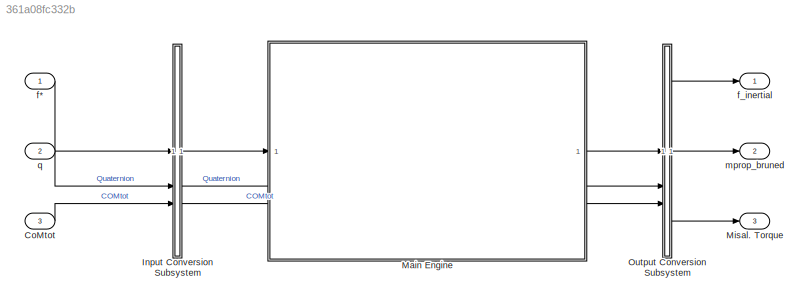
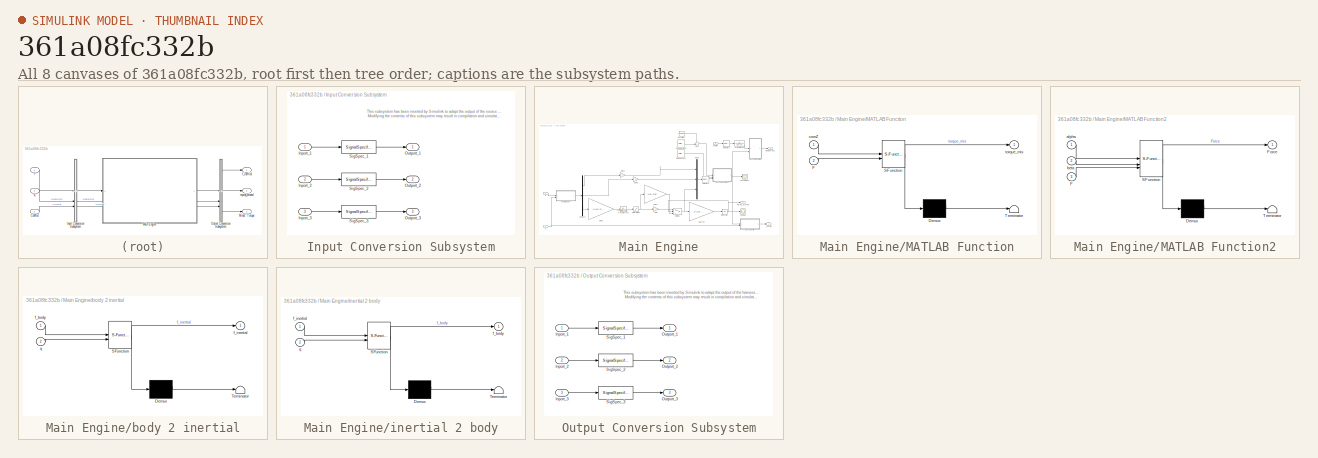
[diagram: thumbnail index - all 8 canvases of the model, root first then tree order]
MODEL slx_361a08fc332b
KIND model
CONFIG AbsTol = auto
CONFIG EnableMultiTasking = off
CONFIG FixedStep = 0.01
CONFIG MaxStep = auto
CONFIG MinStep = auto
CONFIG RelTol = 1e-3
CONFIG SampleTimeConstraint = Unconstrained
CONFIG SolverName = ode4
CONFIG StartTime = 0.0
CONFIG StopTime = 600
BLOCK [Inport] CoMtot
  Interpolate = off
  OutDataTypeStr = double
  Port = 3
  PortDimensions = [3]
  SignalType = real
  VarSizeSig = No
BLOCK [SubSystem] Input Conversion Subsystem
  AttributesFormatString = %<Description>
  Description = Signal spec.\nand routing
  Permissions = ReadOnly
  PermitHierarchicalResolution = ExplicitOnly
  Tag = __SLT_ICS__
  TreatAsGroupedWhenPropagatingVariantConditions = off
  UserDataPersistent = on
BLOCK [Inport] Input Conversion Subsystem/Inport_1
BLOCK [Inport] Input Conversion Subsystem/Inport_2
  Port = 2
BLOCK [Inport] Input Conversion Subsystem/Inport_3
  Port = 3
BLOCK [Outport] Input Conversion Subsystem/Outport_1
BLOCK [Outport] Input Conversion Subsystem/Outport_2
  Port = 2
BLOCK [Outport] Input Conversion Subsystem/Outport_3
  Port = 3
BLOCK [SignalSpecification] Input Conversion Subsystem/SigSpec_1
  Dimensions = [3, 1]
  OutDataTypeStr = double
  SignalType = real
  VarSizeSig = No
BLOCK [SignalSpecification] Input Conversion Subsystem/SigSpec_2
  Dimensions = [4, 1]
  OutDataTypeStr = double
  SignalType = real
  VarSizeSig = No
BLOCK [SignalSpecification] Input Conversion Subsystem/SigSpec_3
  Dimensions = [3]
  OutDataTypeStr = double
  SignalType = real
  VarSizeSig = No
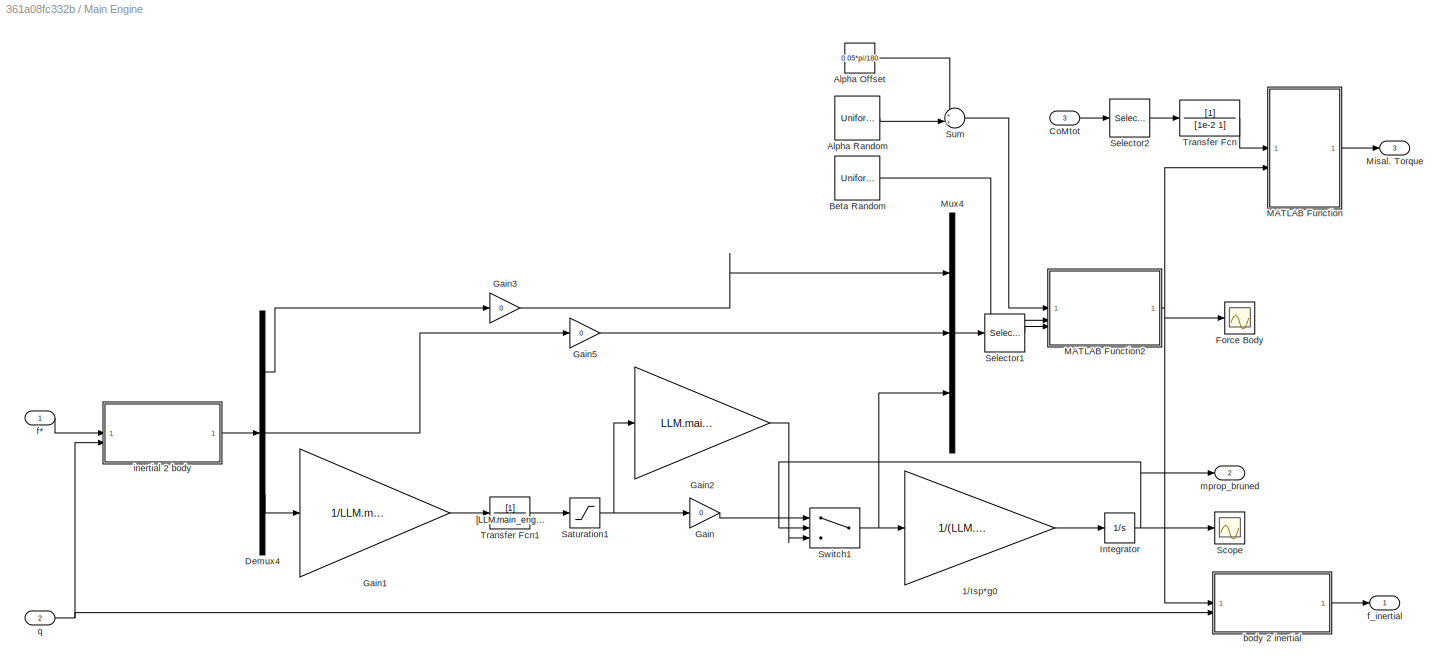
BLOCK [SubSystem] Main Engine
  NameLocation = top
  PortSchema = {"entries":[{"content":{"sides":[{"content":{"connectorIds":["In1"]},"type":"ConnectorPlacement.EquallySpacedRectSide","uuid":"1cd70ed7-fffe-4052-be12-d08ec438809a"},{"content":{"connectorIds":["Out1","Out2","Out3"],"side":"RIGHT"},"type":"ConnectorPlacement.EquallySpacedRectSide","uuid":"572c642b-d704-4725-a3d6-bfccbd3ff261"},{"content":{"side":"TOP"},"type":"ConnectorPlacement.EquallySpacedRectS...<+391ch>
  TreatAsAtomicUnit = on
BLOCK [Gain] Main Engine/1//Isp*g0
  Gain = 1/(LLM.propellant.isp*g0)
BLOCK [Constant] Main Engine/Alpha Offset
  Value = 0.05*pi/180
BLOCK [UniformRandomNumber] Main Engine/Alpha Random
  Maximum = LLM.main_engine.misallignment_alpha*pi/180
  Minimum = -LLM.main_engine.misallignment_alpha*pi/180
  SampleTime = 0.1
BLOCK [UniformRandomNumber] Main Engine/Beta Random
  Maximum = LLM.main_engine.misallignment_beta*pi/180
  Minimum = -LLM.main_engine.misallignment_beta*pi/180
  SampleTime = 0.1
  Seed = 1
BLOCK [Inport] Main Engine/CoMtot
  Port = 3
BLOCK [Demux] Main Engine/Demux4
  Outputs = 3
BLOCK [Scope] Main Engine/Force Body
  Floating = off
  NumInputPorts = 1
  ScopeSpecificationString = Simulink.scopes.TimeScopeBlockCfg('CurrentConfiguration', extmgr.ConfigurationSet(extmgr.Configuration('Core','General UI',true),extmgr.Configuration('Core','Source UI',true),extmgr.Configuration('Sources','WiredSimulink',true,'DataLoggingVariableName','ScopeData5'),extmgr.Configuration('Visuals','Time Domain',true,'SerializedDisplays',{struct('MinYLimReal','-14138.05981','MaxYLimReal','118616.802...<+1685ch>
BLOCK [Gain] Main Engine/Gain
  Gain = 0
BLOCK [Gain] Main Engine/Gain1
  Gain = 1/LLM.main_engine.Fmax
BLOCK [Gain] Main Engine/Gain2
  Gain = LLM.main_engine.Fmax
BLOCK [Gain] Main Engine/Gain3
  Gain = 0
BLOCK [Gain] Main Engine/Gain5
  Gain = 0
BLOCK [Integrator] Main Engine/Integrator
  LimitOutput = on
  LowerSaturationLimit = 0
  UpperSaturationLimit = LLM.propellant.mass
BLOCK [SubSystem] Main Engine/MATLAB Function
  ErrorFcn = Stateflow.Translate.translate
  PermitHierarchicalResolution = ExplicitOnly
  SFBlockType = MATLAB Function
  TreatAsAtomicUnit = on
BLOCK [Demux] Main Engine/MATLAB Function/ Demux 
  Outputs = 1
BLOCK [S-Function] Main Engine/MATLAB Function/ SFunction 
  EnableBusSupport = on
  FunctionName = sf_sfun
  PortCounts = [2 2]
  SFcnIsStateOwnerBlock = off
  SFunctionDeploymentMode = off
  Tag = Stateflow S-Function 10
BLOCK [Terminator] Main Engine/MATLAB Function/ Terminator 
BLOCK [Inport] Main Engine/MATLAB Function/F
  Port = 2
BLOCK [Inport] Main Engine/MATLAB Function/comZ
BLOCK [Outport] Main Engine/MATLAB Function/torque_mis
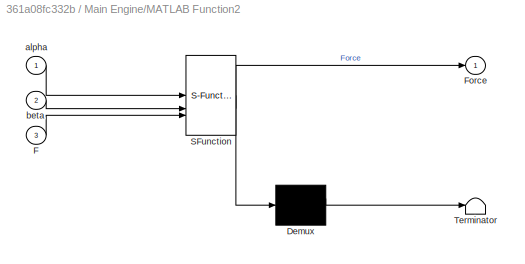
BLOCK [SubSystem] Main Engine/MATLAB Function2
  ErrorFcn = Stateflow.Translate.translate
  PermitHierarchicalResolution = ExplicitOnly
  SFBlockType = MATLAB Function
  TreatAsAtomicUnit = on
BLOCK [Demux] Main Engine/MATLAB Function2/ Demux 
  Outputs = 1
BLOCK [S-Function] Main Engine/MATLAB Function2/ SFunction 
  EnableBusSupport = on
  FunctionName = sf_sfun
  PortCounts = [3 2]
  SFcnIsStateOwnerBlock = off
  SFunctionDeploymentMode = off
  Tag = Stateflow S-Function 12
BLOCK [Terminator] Main Engine/MATLAB Function2/ Terminator 
BLOCK [Inport] Main Engine/MATLAB Function2/F
  Port = 3
BLOCK [Outport] Main Engine/MATLAB Function2/Force
BLOCK [Inport] Main Engine/MATLAB Function2/alpha
BLOCK [Inport] Main Engine/MATLAB Function2/beta
  Port = 2
BLOCK [Outport] Main Engine/Misal. Torque
  Port = 3
BLOCK [Mux] Main Engine/Mux4
  DisplayOption = bar
  Inputs = 3
BLOCK [Saturate] Main Engine/Saturation1
  LowerLimit = -1
  UpperLimit = 1
BLOCK [Scope] Main Engine/Scope
  Floating = off
  NumInputPorts = 1
  ScopeSpecificationString = Simulink.scopes.TimeScopeBlockCfg('CurrentConfiguration', extmgr.ConfigurationSet(extmgr.Configuration('Core','General UI',true),extmgr.Configuration('Core','Source UI',true),extmgr.Configuration('Sources','WiredSimulink',true,'DataLoggingVariableName','ScopeData3'),extmgr.Configuration('Visuals','Time Domain',true,'SerializedDisplays',{struct('MinYLimReal','-852.59417','MaxYLimReal','7673.34753',...<+1501ch>
BLOCK [Selector] Main Engine/Selector1
  IndexOptions = Index vector (dialog)
  Indices = [3]
  InputPortWidth = 3
  OutputSizes = 1
BLOCK [Selector] Main Engine/Selector2
  IndexOptions = Index vector (dialog)
  Indices = [3]
  InputPortWidth = 3
  OutputSizes = 1
BLOCK [Sum] Main Engine/Sum
  Inputs = ++|
BLOCK [Switch] Main Engine/Switch1
  Criteria = u2 > Threshold
  InputSameDT = off
  SaturateOnIntegerOverflow = off
  Threshold = 0.99*LLM.propellant.mass
BLOCK [TransferFcn] Main Engine/Transfer Fcn
  Denominator = [1e-2 1]
BLOCK [TransferFcn] Main Engine/Transfer Fcn1
  Denominator = [LLM.main_engine.tau 1]
BLOCK [SubSystem] Main Engine/body 2 inertial
  ErrorFcn = Stateflow.Translate.translate
  PermitHierarchicalResolution = ExplicitOnly
  SFBlockType = MATLAB Function
  TreatAsAtomicUnit = on
BLOCK [Demux] Main Engine/body 2 inertial/ Demux 
  Outputs = 1
BLOCK [S-Function] Main Engine/body 2 inertial/ SFunction 
  EnableBusSupport = on
  FunctionName = sf_sfun
  PortCounts = [2 2]
  SFcnIsStateOwnerBlock = off
  SFunctionDeploymentMode = off
  Tag = Stateflow S-Function 17
BLOCK [Terminator] Main Engine/body 2 inertial/ Terminator 
BLOCK [Inport] Main Engine/body 2 inertial/f_body
BLOCK [Outport] Main Engine/body 2 inertial/f_inertial
BLOCK [Inport] Main Engine/body 2 inertial/q
  Port = 2
BLOCK [Inport] Main Engine/f*
BLOCK [Outport] Main Engine/f_inertial
BLOCK [SubSystem] Main Engine/inertial 2 body
  ErrorFcn = Stateflow.Translate.translate
  PermitHierarchicalResolution = ExplicitOnly
  SFBlockType = MATLAB Function
  TreatAsAtomicUnit = on
BLOCK [Demux] Main Engine/inertial 2 body/ Demux 
  Outputs = 1
BLOCK [S-Function] Main Engine/inertial 2 body/ SFunction 
  EnableBusSupport = on
  FunctionName = sf_sfun
  PortCounts = [2 2]
  SFcnIsStateOwnerBlock = off
  SFunctionDeploymentMode = off
  Tag = Stateflow S-Function 18
BLOCK [Terminator] Main Engine/inertial 2 body/ Terminator 
BLOCK [Outport] Main Engine/inertial 2 body/f_body
BLOCK [Inport] Main Engine/inertial 2 body/f_inertial
BLOCK [Inport] Main Engine/inertial 2 body/q
  Port = 2
BLOCK [Outport] Main Engine/mprop_bruned
  Port = 2
BLOCK [Inport] Main Engine/q
  Port = 2
BLOCK [Outport] Misal. Torque
  Port = 3
BLOCK [SubSystem] Output Conversion Subsystem
  AttributesFormatString = %<Description>
  Description = Signal spec.\nand routing
  Permissions = ReadOnly
  PermitHierarchicalResolution = ExplicitOnly
  Tag = __SLT_OCS__
  TreatAsGroupedWhenPropagatingVariantConditions = off
  UserDataPersistent = on
BLOCK [Inport] Output Conversion Subsystem/Inport_1
BLOCK [Inport] Output Conversion Subsystem/Inport_2
  Port = 2
BLOCK [Inport] Output Conversion Subsystem/Inport_3
  Port = 3
BLOCK [Outport] Output Conversion Subsystem/Outport_1
BLOCK [Outport] Output Conversion Subsystem/Outport_2
  Port = 2
BLOCK [Outport] Output Conversion Subsystem/Outport_3
  Port = 3
BLOCK [SignalSpecification] Output Conversion Subsystem/SigSpec_1
  Dimensions = [3, 1]
  OutDataTypeStr = double
  SignalType = real
  VarSizeSig = No
BLOCK [SignalSpecification] Output Conversion Subsystem/SigSpec_2
  Dimensions = [1]
  OutDataTypeStr = double
  SignalType = real
  VarSizeSig = No
BLOCK [SignalSpecification] Output Conversion Subsystem/SigSpec_3
  Dimensions = [3, 1]
  OutDataTypeStr = double
  SignalType = real
  VarSizeSig = No
BLOCK [Inport] f*
  Interpolate = off
  OutDataTypeStr = double
  PortDimensions = [3, 1]
  SignalType = real
  VarSizeSig = No
BLOCK [Outport] f_inertial
BLOCK [Outport] mprop_bruned
  Port = 2
BLOCK [Inport] q
  Interpolate = off
  OutDataTypeStr = double
  Port = 2
  PortDimensions = [4, 1]
  SignalType = real
  VarSizeSig = No
ANNOTATION Input Conversion Subsystem: This subsystem has been inserted by Simulink to adapt the output of the source blocks to the interface required by the harnessed component. Modifying the contents of this subsystem may result in compilation and simulation failure.
ANNOTATION Output Conversion Subsystem: This subsystem has been inserted by Simulink to adapt the output of the harnessed component to the interface required by the sink blocks. Modifying the contents of this subsystem may result in compilation and simulation failure.
LINE CoMtot:1 -> Input Conversion Subsystem:3
LINE Input Conversion Subsystem/Inport_1:1 -> Input Conversion Subsystem/SigSpec_1:1
LINE Input Conversion Subsystem/Inport_2:1 -> Input Conversion Subsystem/SigSpec_2:1
LINE Input Conversion Subsystem/Inport_3:1 -> Input Conversion Subsystem/SigSpec_3:1
LINE Input Conversion Subsystem/SigSpec_1:1 -> Input Conversion Subsystem/Outport_1:1
LINE Input Conversion Subsystem/SigSpec_2:1 -> Input Conversion Subsystem/Outport_2:1
LINE Input Conversion Subsystem/SigSpec_3:1 -> Input Conversion Subsystem/Outport_3:1
LINE Input Conversion Subsystem:1 -> Main Engine:1
LINE Input Conversion Subsystem:2 -> Main Engine:2
LINE Input Conversion Subsystem:3 -> Main Engine:3
LINE Main Engine/1//Isp*g0:1 -> Main Engine/Integrator:1
LINE Main Engine/Alpha Offset:1 -> Main Engine/Sum:1
LINE Main Engine/Alpha Random:1 -> Main Engine/Sum:2
LINE Main Engine/Beta Random:1 -> Main Engine/MATLAB Function2:2
LINE Main Engine/CoMtot:1 -> Main Engine/Selector2:1
LINE Main Engine/Demux4:1 -> Main Engine/Gain3:1
LINE Main Engine/Demux4:2 -> Main Engine/Gain5:1
LINE Main Engine/Demux4:3 -> Main Engine/Gain1:1
LINE Main Engine/Gain1:1 -> Main Engine/Transfer Fcn1:1
LINE Main Engine/Gain2:1 -> Main Engine/Switch1:3
LINE Main Engine/Gain3:1 -> Main Engine/Mux4:1
LINE Main Engine/Gain5:1 -> Main Engine/Mux4:2
LINE Main Engine/Gain:1 -> Main Engine/Switch1:1
NET Main Engine/Integrator:1 -> Main Engine/Scope:1, Main Engine/Switch1:2, Main Engine/mprop_bruned:1
NET Main Engine/MATLAB Function2:1 -> Main Engine/Force Body:1, Main Engine/MATLAB Function:2, Main Engine/body 2 inertial:1
LINE Main Engine/MATLAB Function:1 -> Main Engine/Misal. Torque:1
LINE Main Engine/Mux4:1 -> Main Engine/Selector1:1
NET Main Engine/Saturation1:1 -> Main Engine/Gain2:1, Main Engine/Gain:1
LINE Main Engine/Selector1:1 -> Main Engine/MATLAB Function2:3
LINE Main Engine/Selector2:1 -> Main Engine/Transfer Fcn:1
LINE Main Engine/Sum:1 -> Main Engine/MATLAB Function2:1
NET Main Engine/Switch1:1 -> Main Engine/1//Isp*g0:1, Main Engine/Mux4:3
LINE Main Engine/Transfer Fcn1:1 -> Main Engine/Saturation1:1
LINE Main Engine/Transfer Fcn:1 -> Main Engine/MATLAB Function:1
LINE Main Engine/body 2 inertial:1 -> Main Engine/f_inertial:1
LINE Main Engine/f*:1 -> Main Engine/inertial 2 body:1
LINE Main Engine/inertial 2 body:1 -> Main Engine/Demux4:1
NET Main Engine/q:1 -> Main Engine/body 2 inertial:2, Main Engine/inertial 2 body:2
LINE Main Engine:1 -> Output Conversion Subsystem:1
LINE Main Engine:2 -> Output Conversion Subsystem:2
LINE Main Engine:3 -> Output Conversion Subsystem:3
LINE Output Conversion Subsystem/Inport_1:1 -> Output Conversion Subsystem/SigSpec_1:1
LINE Output Conversion Subsystem/Inport_2:1 -> Output Conversion Subsystem/SigSpec_2:1
LINE Output Conversion Subsystem/Inport_3:1 -> Output Conversion Subsystem/SigSpec_3:1
LINE Output Conversion Subsystem/SigSpec_1:1 -> Output Conversion Subsystem/Outport_1:1
LINE Output Conversion Subsystem/SigSpec_2:1 -> Output Conversion Subsystem/Outport_2:1
LINE Output Conversion Subsystem/SigSpec_3:1 -> Output Conversion Subsystem/Outport_3:1
LINE Output Conversion Subsystem:1 -> f_inertial:1
LINE Output Conversion Subsystem:2 -> mprop_bruned:1
LINE Output Conversion Subsystem:3 -> Misal. Torque:1
LINE f*:1 -> Input Conversion Subsystem:1
LINE q:1 -> Input Conversion Subsystem:2
note: NET lines group one-source signal fan-out (src -> all destinations, sorted); 1:1 wires keep LINE
CHART Main Engine/MATLAB Function2 states=1 transitions=1
  STATE_LABEL 'eML_blk_kernel()'
  STATE_LABEL "SCRIPT:\nfunction Force = ForceRotate(alpha, beta,F)\n%#codegen\n% ForceRotate\n% Ruota la forza iniziale [0;0;F] usando angoli polari:\n%   alpha = angolo tra il raggio e l'asse Z\n%   beta  = azimut nel piano XY misurato da +X verso +Y\n%\n% INPUTS:\n%   F          - modulo della forza (scalar o array)\n%   alpha, beta- angoli (stesse dimensioni di F o scalari)\n%   useDegrees - (opzionale) true se alpha/b...<+315ch>"
CHART Main Engine/body 2 inertial states=1 transitions=1
  STATE_LABEL 'eML_blk_kernel()'
  STATE_LABEL "SCRIPT:\nfunction f_inertial = fcn(f_body,q)\n\n% Using quaternions\nq0 = q(1);\nq1 = q(2);\nq2 = q(3);\nq3 = q(4);\nR = [q0^2+q1^2-q2^2-q3^2 2*(q1*q2-q0*q3) 2*(q1*q3+q0*q2);\n     2*(q1*q2+q0*q3) q0^2-q1^2+q2^2-q3^2 2*(q2*q3-q0*q1);\n     2*(q1*q3-q0*q2) 2*(q2*q3+q0*q1) q0^2-q1^2-q2^2+q3^2];\n\n\n% Using euler angles (ZYX)\n% eul(1) rotation around x\n% eul(2) rotation around y'\n% eul(3) rotation around z''\n% R...<+258ch>"
CHART Main Engine/inertial 2 body states=1 transitions=1
  STATE_LABEL 'eML_blk_kernel()'
  STATE_LABEL "SCRIPT:\nfunction f_body = fcn(f_inertial,q)\n\n% Using quaternions\nq0 = q(1);\nq1 = q(2);\nq2 = q(3);\nq3 = q(4);\nR = [q0^2+q1^2-q2^2-q3^2 2*(q1*q2-q0*q3) 2*(q1*q3+q0*q2);\n     2*(q1*q2+q0*q3) q0^2-q1^2+q2^2-q3^2 2*(q2*q3-q0*q1);\n     2*(q1*q3-q0*q2) 2*(q2*q3+q0*q1) q0^2-q1^2-q2^2+q3^2];\n\n\n% Using euler angles (ZYX)\n% eul(1) rotation around x\n% eul(2) rotation around y'\n% eul(3) rotation around z''\n% R...<+257ch>"
CHART Main Engine/MATLAB Function states=1 transitions=1
  STATE_LABEL 'eML_blk_kernel()'
  STATE_LABEL 'SCRIPT:\nfunction torque_mis = fcn(comZ, F)\n\ntorque_mis = [F(1)*comZ; F(2)*comZ; 0];\n'
CHART  states=0 transitions=0
CHART  states=0 transitions=0
CHART  states=0 transitions=0
CHART  states=0 transitions=0
